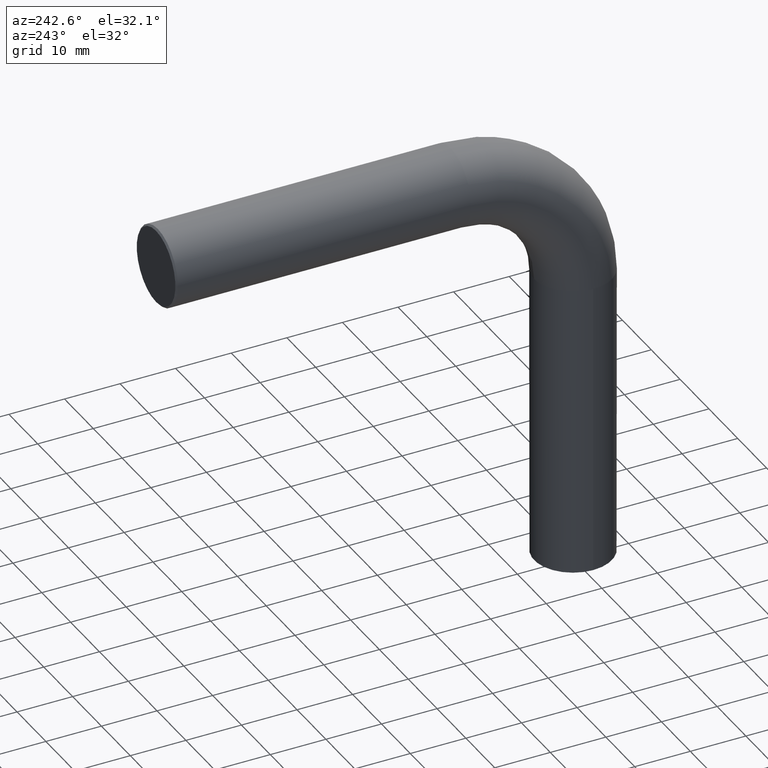
[diagram: clean part render]
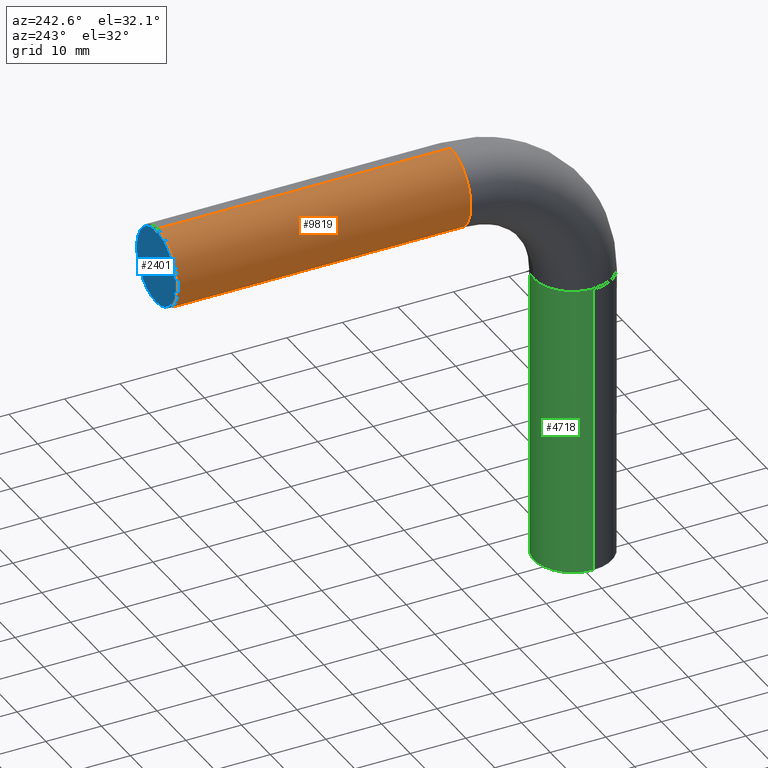
[diagram: same view with three faces highlighted in distinct colors, each labeled with its STEP entity id]
A machine part, auxiliary view with three faces highlighted in distinct colors.
Their STEP definitions:

[orange] entity #9819 — the highlighted cylindrical surface (partial cylindrical patch) has radius 7 mm, axis along (0, 1, 0).
#415 = CARTESIAN_POINT ( 'NONE',  ( 0.000000000000000000, 74.70000000000001705, 75.00000000000000000 ) ) ;
#527 = CARTESIAN_POINT ( 'NONE',  ( 0.000000000000000000, 22.00000000000016342, 82.00000000000000000 ) ) ;
#935 = DIRECTION ( 'NONE',  ( 0.000000000000000000, 1.000000000000000000, 0.000000000000000000 ) ) ;
#943 = VERTEX_POINT ( 'NONE', #8841 ) ;
#1449 = VERTEX_POINT ( 'NONE', #3957 ) ;
#1976 = ORIENTED_EDGE ( 'NONE', *, *, #11341, .T. ) ;
#1981 = VERTEX_POINT ( 'NONE', #7174 ) ;
#2442 = CIRCLE ( 'NONE', #5168, 7.000000000000000888 ) ;
#2893 = EDGE_CURVE ( 'NONE', #1981, #943, #11556, .T. ) ;
#3176 = ORIENTED_EDGE ( 'NONE', *, *, #2893, .F. ) ;
#3293 = CARTESIAN_POINT ( 'NONE',  ( 0.000000000000000000, 22.00000000000016342, 75.00000000000000000 ) ) ;
#3508 = DIRECTION ( 'NONE',  ( 0.000000000000000000, 1.000000000000000000, 0.000000000000000000 ) ) ;
#3762 = VERTEX_POINT ( 'NONE', #9191 ) ;
#3929 = FACE_OUTER_BOUND ( 'NONE', #11766, .T. ) ;
#3957 = CARTESIAN_POINT ( 'NONE',  ( 0.000000000000000000, 74.70000000000001705, 82.00000000000000000 ) ) ;
#4242 = CIRCLE ( 'NONE', #10227, 7.000000000000006217 ) ;
#4885 = ORIENTED_EDGE ( 'NONE', *, *, #9661, .T. ) ;
#5051 = DIRECTION ( 'NONE',  ( 0.000000000000000000, 0.000000000000000000, 1.000000000000000000 ) ) ;
#5168 = AXIS2_PLACEMENT_3D ( 'NONE', #3293, #8088, #5218 ) ;
#5182 = VECTOR ( 'NONE', #12055, 1000.000000000000000 ) ;
#5218 = DIRECTION ( 'NONE',  ( 1.000000000000000000, 0.000000000000000000, 0.000000000000000000 ) ) ;
#5375 = EDGE_CURVE ( 'NONE', #1449, #943, #4242, .T. ) ;
#5995 = ORIENTED_EDGE ( 'NONE', *, *, #5375, .T. ) ;
#7174 = CARTESIAN_POINT ( 'NONE',  ( 8.572527594031467273E-16, 22.00000000000006040, 67.99999999999998579 ) ) ;
#7472 = LINE ( 'NONE', #527, #11022 ) ;
#8088 = DIRECTION ( 'NONE',  ( 0.000000000000000000, 1.000000000000000000, -1.459371158509469876E-14 ) ) ;
#8433 = CARTESIAN_POINT ( 'NONE',  ( 8.572527594031474176E-16, 22.00000000000016342, 67.99999999999998579 ) ) ;
#8841 = CARTESIAN_POINT ( 'NONE',  ( 8.572527594031467273E-16, 74.70000000000001705, 67.99999999999998579 ) ) ;
#8985 = AXIS2_PLACEMENT_3D ( 'NONE', #12334, #935, #10446 ) ;
#9191 = CARTESIAN_POINT ( 'NONE',  ( 0.000000000000000000, 22.00000000000026290, 82.00000000000000000 ) ) ;
#9661 = EDGE_CURVE ( 'NONE', #1981, #3762, #2442, .T. ) ;
#9780 = DIRECTION ( 'NONE',  ( 0.000000000000000000, -1.000000000000000000, 0.000000000000000000 ) ) ;
#9819 = ADVANCED_FACE ( 'NONE', ( #3929 ), #10320, .T. ) ;
#10227 = AXIS2_PLACEMENT_3D ( 'NONE', #415, #9780, #5051 ) ;
#10320 = CYLINDRICAL_SURFACE ( 'NONE', #8985, 7.000000000000006217 ) ;
#10446 = DIRECTION ( 'NONE',  ( 0.000000000000000000, 0.000000000000000000, 1.000000000000000000 ) ) ;
#11022 = VECTOR ( 'NONE', #3508, 1000.000000000000000 ) ;
#11341 = EDGE_CURVE ( 'NONE', #3762, #1449, #7472, .T. ) ;
#11556 = LINE ( 'NONE', #8433, #5182 ) ;
#11766 = EDGE_LOOP ( 'NONE', ( #3176, #4885, #1976, #5995 ) ) ;
#12055 = DIRECTION ( 'NONE',  ( 0.000000000000000000, 1.000000000000000000, 0.000000000000000000 ) ) ;
#12334 = CARTESIAN_POINT ( 'NONE',  ( 0.000000000000000000, 22.00000000000016342, 75.00000000000000000 ) ) ;

[blue] entity #2401 — the highlighted planar face has unit normal (0, 1, -0).
#428 = DIRECTION ( 'NONE',  ( 0.000000000000000000, 1.449918129174642329E-14, 1.000000000000000000 ) ) ;
#728 = EDGE_LOOP ( 'NONE', ( #12056, #11987 ) ) ;
#928 = AXIS2_PLACEMENT_3D ( 'NONE', #6217, #1483, #2445 ) ;
#1483 = DIRECTION ( 'NONE',  ( 0.000000000000000000, 1.000000000000000000, -1.459371158509469876E-14 ) ) ;
#2401 = ADVANCED_FACE ( 'NONE', ( #5341 ), #4846, .T. ) ;
#2445 = DIRECTION ( 'NONE',  ( 0.000000000000000000, 1.449918129174642329E-14, 1.000000000000000000 ) ) ;
#3077 = AXIS2_PLACEMENT_3D ( 'NONE', #4174, #10700, #428 ) ;
#4034 = CARTESIAN_POINT ( 'NONE',  ( 0.000000000000000000, 75.00000000000000000, 75.00000000000000000 ) ) ;
#4174 = CARTESIAN_POINT ( 'NONE',  ( 0.000000000000000000, 75.00000000000000000, 75.00000000000000000 ) ) ;
#4419 = AXIS2_PLACEMENT_3D ( 'NONE', #4034, #8701, #7864 ) ;
#4493 = EDGE_CURVE ( 'NONE', #7998, #9023, #11961, .T. ) ;
#4846 = PLANE ( 'NONE',  #4419 ) ;
#5341 = FACE_OUTER_BOUND ( 'NONE', #728, .T. ) ;
#6217 = CARTESIAN_POINT ( 'NONE',  ( 0.000000000000000000, 75.00000000000000000, 75.00000000000000000 ) ) ;
#7139 = CARTESIAN_POINT ( 'NONE',  ( 8.388830574159373820E-16, 75.00000000000009948, 81.70000000000000284 ) ) ;
#7207 = CIRCLE ( 'NONE', #3077, 6.700000000000011724 ) ;
#7864 = DIRECTION ( 'NONE',  ( 1.000000000000000000, 0.000000000000000000, 0.000000000000000000 ) ) ;
#7998 = VERTEX_POINT ( 'NONE', #8482 ) ;
#8440 = EDGE_CURVE ( 'NONE', #9023, #7998, #7207, .T. ) ;
#8482 = CARTESIAN_POINT ( 'NONE',  ( 0.000000000000000000, 74.99999999999990052, 68.29999999999998295 ) ) ;
#8701 = DIRECTION ( 'NONE',  ( 0.000000000000000000, 1.000000000000000000, -1.459371158509469876E-14 ) ) ;
#9023 = VERTEX_POINT ( 'NONE', #7139 ) ;
#10700 = DIRECTION ( 'NONE',  ( 0.000000000000000000, 1.000000000000000000, -1.459371158509469876E-14 ) ) ;
#11961 = CIRCLE ( 'NONE', #928, 6.700000000000011724 ) ;
#11987 = ORIENTED_EDGE ( 'NONE', *, *, #8440, .T. ) ;
#12056 = ORIENTED_EDGE ( 'NONE', *, *, #4493, .T. ) ;

[green] entity #4718 — the highlighted cylindrical surface (partial cylindrical patch) has radius 7 mm, axis along (-0, -0, -1).
#33 = VERTEX_POINT ( 'NONE', #10283 ) ;
#82 = CARTESIAN_POINT ( 'NONE',  ( 0.000000000000000000, 0.000000000000000000, 52.99999999999983658 ) ) ;
#178 = CARTESIAN_POINT ( 'NONE',  ( 7.000000000000000888, 8.572527594031474176E-16, 52.99999999999983658 ) ) ;
#787 = ORIENTED_EDGE ( 'NONE', *, *, #5093, .T. ) ;
#793 = CARTESIAN_POINT ( 'NONE',  ( 0.000000000000000000, 0.000000000000000000, 52.99999999999983658 ) ) ;
#802 = CIRCLE ( 'NONE', #7064, 7.000000000000000888 ) ;
#832 = FACE_OUTER_BOUND ( 'NONE', #1739, .T. ) ;
#991 = DIRECTION ( 'NONE',  ( -1.000000000000000000, 0.000000000000000000, 0.000000000000000000 ) ) ;
#1308 = EDGE_CURVE ( 'NONE', #33, #3736, #5352, .T. ) ;
#1311 = DIRECTION ( 'NONE',  ( -0.000000000000000000, -0.000000000000000000, -1.000000000000000000 ) ) ;
#1739 = EDGE_LOOP ( 'NONE', ( #11152, #787, #11590, #9830, #3833 ) ) ;
#1767 = CARTESIAN_POINT ( 'NONE',  ( -7.000000000000000888, 0.000000000000000000, 0.000000000000000000 ) ) ;
#2553 = VECTOR ( 'NONE', #1311, 1000.000000000000000 ) ;
#2730 = CARTESIAN_POINT ( 'NONE',  ( 0.000000000000000000, 0.000000000000000000, 0.000000000000000000 ) ) ;
#2811 = CARTESIAN_POINT ( 'NONE',  ( 0.000000000000000000, 0.000000000000000000, 52.99999999999983658 ) ) ;
#2859 = LINE ( 'NONE', #8087, #2553 ) ;
#3094 = VERTEX_POINT ( 'NONE', #178 ) ;
#3191 = CIRCLE ( 'NONE', #7566, 7.000000000000000888 ) ;
#3641 = VECTOR ( 'NONE', #11255, 1000.000000000000000 ) ;
#3736 = VERTEX_POINT ( 'NONE', #7225 ) ;
#3833 = ORIENTED_EDGE ( 'NONE', *, *, #1308, .F. ) ;
#3960 = DIRECTION ( 'NONE',  ( 0.000000000000000000, 0.000000000000000000, 1.000000000000000000 ) ) ;
#4547 = LINE ( 'NONE', #5467, #3641 ) ;
#4588 = DIRECTION ( 'NONE',  ( 1.000000000000000000, 0.000000000000000000, 0.000000000000000000 ) ) ;
#4700 = VERTEX_POINT ( 'NONE', #1767 ) ;
#4718 = ADVANCED_FACE ( 'NONE', ( #832 ), #10649, .T. ) ;
#4974 = VERTEX_POINT ( 'NONE', #8254 ) ;
#5093 = EDGE_CURVE ( 'NONE', #3094, #4974, #4547, .T. ) ;
#5352 = CIRCLE ( 'NONE', #5531, 7.000000000000000888 ) ;
#5467 = CARTESIAN_POINT ( 'NONE',  ( 7.000000000000000888, 8.572527594031474176E-16, 52.99999999999983658 ) ) ;
#5531 = AXIS2_PLACEMENT_3D ( 'NONE', #793, #8454, #4588 ) ;
#5959 = EDGE_CURVE ( 'NONE', #4974, #4700, #3191, .T. ) ;
#6789 = DIRECTION ( 'NONE',  ( 1.000000000000000000, 0.000000000000000000, 0.000000000000000000 ) ) ;
#7064 = AXIS2_PLACEMENT_3D ( 'NONE', #82, #3960, #6789 ) ;
#7225 = CARTESIAN_POINT ( 'NONE',  ( -7.000000000000000888, 0.000000000000000000, 52.99999999999983658 ) ) ;
#7288 = AXIS2_PLACEMENT_3D ( 'NONE', #2811, #9381, #991 ) ;
#7566 = AXIS2_PLACEMENT_3D ( 'NONE', #2730, #12098, #9350 ) ;
#8087 = CARTESIAN_POINT ( 'NONE',  ( -7.000000000000000888, 0.000000000000000000, 52.99999999999983658 ) ) ;
#8254 = CARTESIAN_POINT ( 'NONE',  ( 7.000000000000000888, 8.572527594031474176E-16, 0.000000000000000000 ) ) ;
#8454 = DIRECTION ( 'NONE',  ( 0.000000000000000000, 0.000000000000000000, 1.000000000000000000 ) ) ;
#9350 = DIRECTION ( 'NONE',  ( 1.000000000000000000, 0.000000000000000000, 0.000000000000000000 ) ) ;
#9381 = DIRECTION ( 'NONE',  ( -0.000000000000000000, -0.000000000000000000, -1.000000000000000000 ) ) ;
#9830 = ORIENTED_EDGE ( 'NONE', *, *, #11793, .F. ) ;
#9938 = EDGE_CURVE ( 'NONE', #3094, #33, #802, .T. ) ;
#10283 = CARTESIAN_POINT ( 'NONE',  ( 8.572527594031474176E-16, 7.000000000000000888, 52.99999999999983658 ) ) ;
#10649 = CYLINDRICAL_SURFACE ( 'NONE', #7288, 7.000000000000000888 ) ;
#11152 = ORIENTED_EDGE ( 'NONE', *, *, #9938, .F. ) ;
#11255 = DIRECTION ( 'NONE',  ( -0.000000000000000000, -0.000000000000000000, -1.000000000000000000 ) ) ;
#11590 = ORIENTED_EDGE ( 'NONE', *, *, #5959, .T. ) ;
#11793 = EDGE_CURVE ( 'NONE', #3736, #4700, #2859, .T. ) ;
#12098 = DIRECTION ( 'NONE',  ( 0.000000000000000000, 0.000000000000000000, 1.000000000000000000 ) ) ;